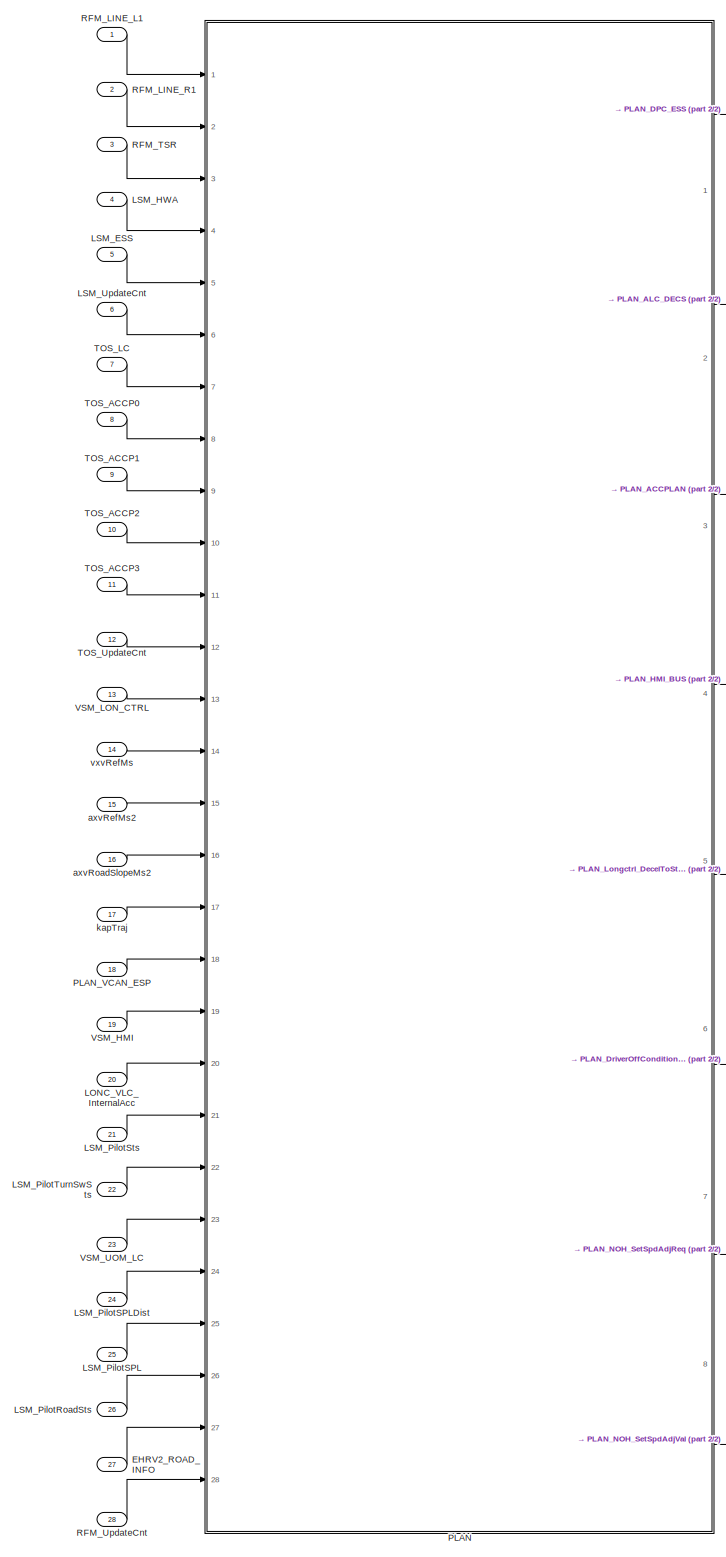
[diagram: root canvas - part 1/2, most of the canvas]
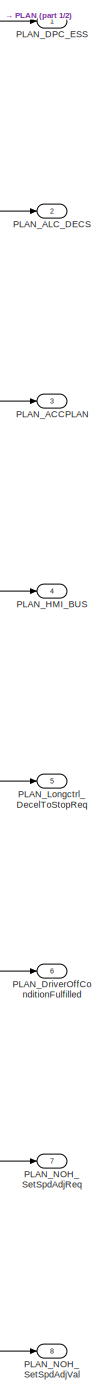
[diagram: root canvas - part 2/2, right side, full height]
MODEL slx_31ac8550f0ec
KIND model
CONFIG AbsTol = auto
CONFIG EnableMultiTasking = off
CONFIG FixedStep = auto
CONFIG InitFcn = , if any(exist('rtifpga_mdlclblib', 'file') ~= 0), rtifpga_mdlclblib('Init', bdroot); end,\n, if any(exist('dsmpb_private', 'file') ~= 0), dsmpb_private('dsmpb_mdlclblib', 'Init', bdroot); end,\n
CONFIG MaxStep = auto
CONFIG MinStep = auto
CONFIG PostLoadFcn = if any(exist('dsrtsu_mdlpostloadfcn', 'file') ~= 0), dsrtsu_mdlpostloadfcn('Execute', bdroot); end
CONFIG RelTol = 1e-3
CONFIG SampleTimeConstraint = Unconstrained
CONFIG SolverName = FixedStepAuto
CONFIG StartTime = 0.0
CONFIG StopTime = Inf
BLOCK [Inport] EHRV2_ROAD_INFO
  OutDataTypeStr = Bus: EHRV2_ROAD_INFO_BUS
  Port = 27
BLOCK [Inport] LONC_VLC_InternalAcc
  BusOutputAsStruct = on
  OutDataTypeStr = single
  Port = 20
  PortDimensions = 1
BLOCK [Inport] LSM_ESS
  BusOutputAsStruct = on
  OutDataTypeStr = Bus: LSM_ESS_BUS
  Port = 5
  PortDimensions = 1
BLOCK [Inport] LSM_HWA
  BusOutputAsStruct = on
  OutDataTypeStr = Bus: LSM_HWA_BUS
  Port = 4
  PortDimensions = 1
BLOCK [Inport] LSM_PilotRoadSts
  OutDataTypeStr = uint8
  Port = 26
BLOCK [Inport] LSM_PilotSPL
  OutDataTypeStr = uint8
  Port = 25
BLOCK [Inport] LSM_PilotSPLDist
  OutDataTypeStr = uint16
  Port = 24
BLOCK [Inport] LSM_PilotSts
  BusOutputAsStruct = on
  OutDataTypeStr = uint8
  Port = 21
  PortDimensions = 1
BLOCK [Inport] LSM_PilotTurnSwSts
  BusOutputAsStruct = on
  OutDataTypeStr = uint8
  Port = 22
  PortDimensions = 1
BLOCK [Inport] LSM_UpdateCnt
  BusOutputAsStruct = on
  OutDataTypeStr = uint32
  Port = 6
  PortDimensions = 1
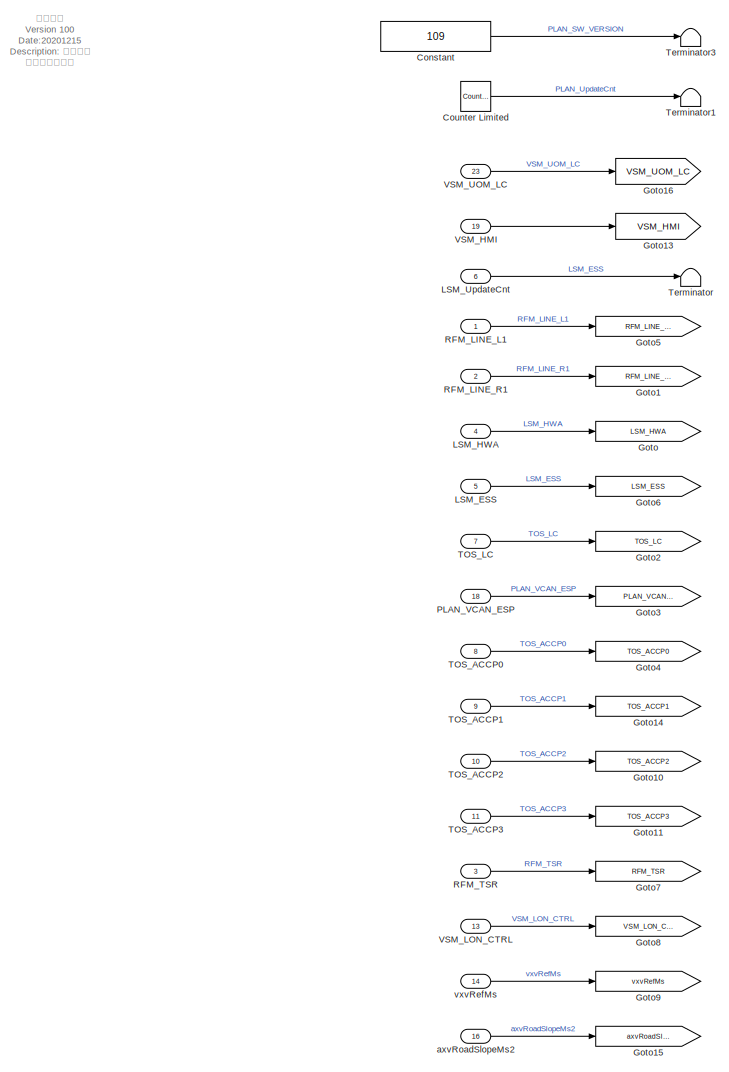
[diagram: PLAN - part 1/3, left side, full height]
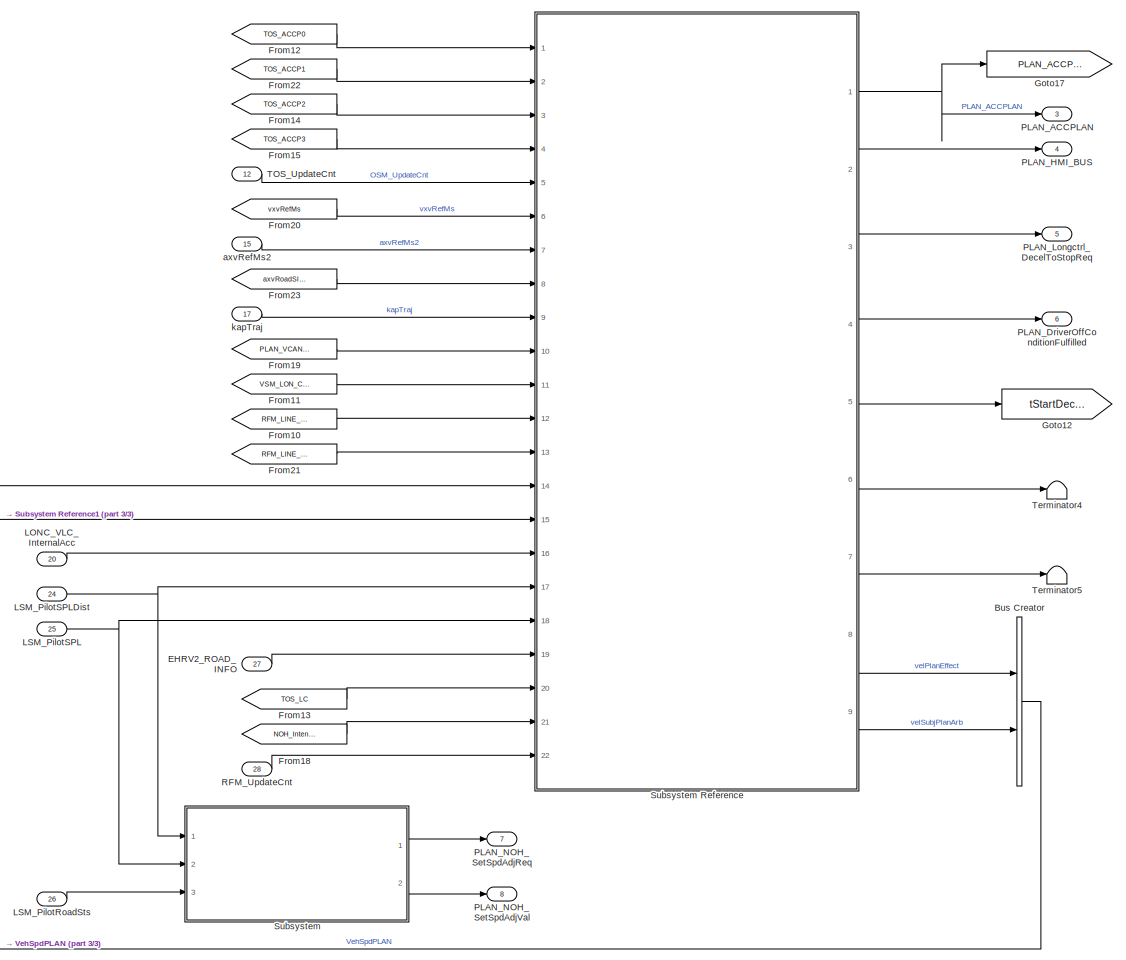
[diagram: PLAN - part 2/3, right side, full height]
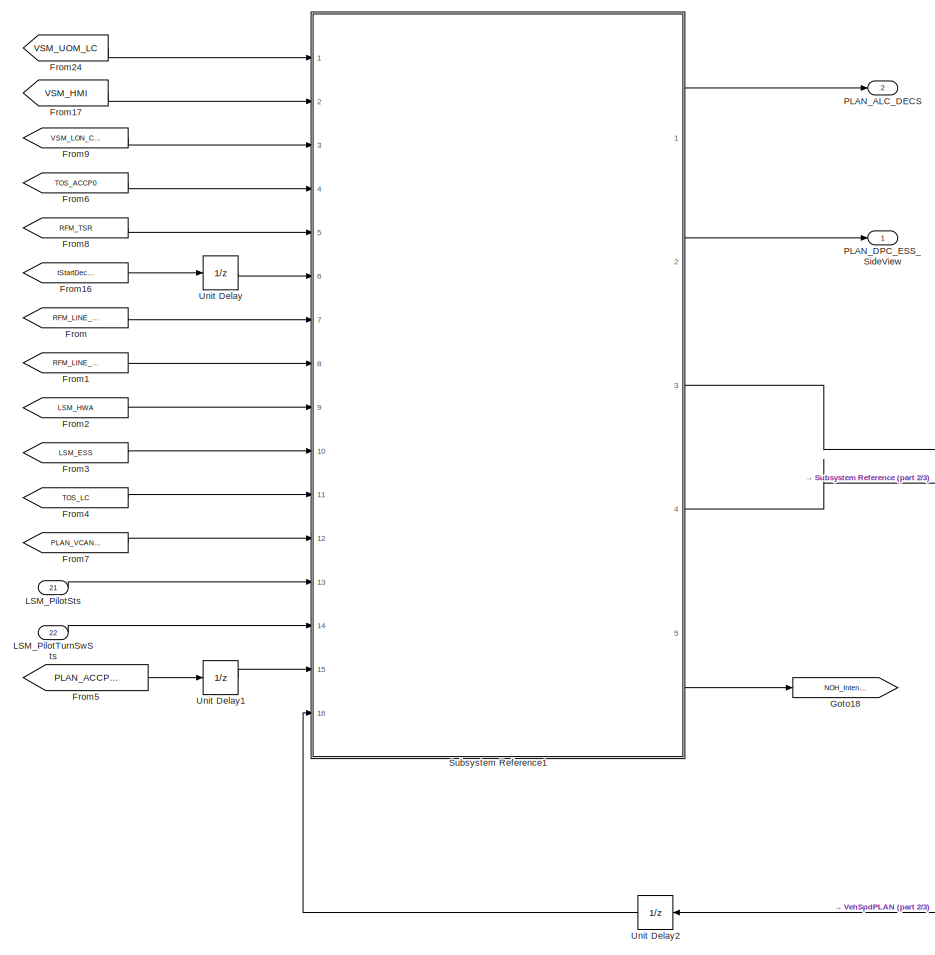
[diagram: PLAN - part 3/3, center side, full height]
BLOCK [SubSystem] PLAN
  Ports = [28, 8]
  RequestExecContextInheritance = off
BLOCK [BusCreator] PLAN/Bus Creator
  DisplayOption = bar
  InheritFromInputs = on
  Inputs = 2
  Ports = [2, 1]
BLOCK [Constant] PLAN/Constant
  OutDataTypeStr = uint8
  Value = 109
BLOCK [Reference] PLAN/Counter Limited  REF=simulink/Sources/Counter
Limited
  Ports = [0, 1]
  SourceBlock = simulink/Sources/Counter\nLimited
  SourceProductBaseCode = SL
  SourceType = Counter Limited
BLOCK [Inport] PLAN/EHRV2_ROAD_INFO
  OutDataTypeStr = Bus: EHRV2_ROAD_INFO_BUS
  Port = 27
BLOCK [From] PLAN/From
  GotoTag = RFM_LINE_L1
BLOCK [From] PLAN/From1
  GotoTag = RFM_LINE_R1
BLOCK [From] PLAN/From10
  GotoTag = RFM_LINE_L1
BLOCK [From] PLAN/From11
  GotoTag = VSM_LON_CTRL
BLOCK [From] PLAN/From12
  GotoTag = TOS_ACCP0
BLOCK [From] PLAN/From13
  GotoTag = TOS_LC
BLOCK [From] PLAN/From14
  GotoTag = TOS_ACCP2
BLOCK [From] PLAN/From15
  GotoTag = TOS_ACCP3
BLOCK [From] PLAN/From16
  GotoTag = tStartDecel
BLOCK [From] PLAN/From17
  GotoTag = VSM_HMI
BLOCK [From] PLAN/From18
  GotoTag = NOH_Intention
BLOCK [From] PLAN/From19
  GotoTag = PLAN_VCAN_ESP
BLOCK [From] PLAN/From2
  GotoTag = LSM_HWA
BLOCK [From] PLAN/From20
  GotoTag = vxvRefMs
BLOCK [From] PLAN/From21
  GotoTag = RFM_LINE_R1
BLOCK [From] PLAN/From22
  GotoTag = TOS_ACCP1
BLOCK [From] PLAN/From23
  GotoTag = axvRoadSlopeMs2
BLOCK [From] PLAN/From24
  GotoTag = VSM_UOM_LC
BLOCK [From] PLAN/From3
  GotoTag = LSM_ESS
BLOCK [From] PLAN/From4
  GotoTag = TOS_LC
BLOCK [From] PLAN/From5
  GotoTag = PLAN_ACCPLAN
BLOCK [From] PLAN/From6
  GotoTag = TOS_ACCP0
BLOCK [From] PLAN/From7
  GotoTag = PLAN_VCAN_ESP
BLOCK [From] PLAN/From8
  GotoTag = RFM_TSR
BLOCK [From] PLAN/From9
  GotoTag = VSM_LON_CTRL
BLOCK [Goto] PLAN/Goto
  GotoTag = LSM_HWA
BLOCK [Goto] PLAN/Goto1
  GotoTag = RFM_LINE_R1
BLOCK [Goto] PLAN/Goto10
  GotoTag = TOS_ACCP2
BLOCK [Goto] PLAN/Goto11
  GotoTag = TOS_ACCP3
BLOCK [Goto] PLAN/Goto12
  GotoTag = tStartDecel
BLOCK [Goto] PLAN/Goto13
  GotoTag = VSM_HMI
BLOCK [Goto] PLAN/Goto14
  GotoTag = TOS_ACCP1
BLOCK [Goto] PLAN/Goto15
  GotoTag = axvRoadSlopeMs2
BLOCK [Goto] PLAN/Goto16
  GotoTag = VSM_UOM_LC
BLOCK [Goto] PLAN/Goto17
  GotoTag = PLAN_ACCPLAN
BLOCK [Goto] PLAN/Goto18
  GotoTag = NOH_Intention
BLOCK [Goto] PLAN/Goto2
  GotoTag = TOS_LC
BLOCK [Goto] PLAN/Goto3
  GotoTag = PLAN_VCAN_ESP
BLOCK [Goto] PLAN/Goto4
  GotoTag = TOS_ACCP0
BLOCK [Goto] PLAN/Goto5
  GotoTag = RFM_LINE_L1
BLOCK [Goto] PLAN/Goto6
  GotoTag = LSM_ESS
BLOCK [Goto] PLAN/Goto7
  GotoTag = RFM_TSR
BLOCK [Goto] PLAN/Goto8
  GotoTag = VSM_LON_CTRL
BLOCK [Goto] PLAN/Goto9
  GotoTag = vxvRefMs
BLOCK [Inport] PLAN/LONC_VLC_InternalAcc
  OutDataTypeStr = single
  Port = 20
BLOCK [Inport] PLAN/LSM_ESS
  BusOutputAsStruct = on
  Interpolate = off
  OutDataTypeStr = Bus: LSM_ESS_BUS
  Port = 5
  PortDimensions = 1
BLOCK [Inport] PLAN/LSM_HWA
  BusOutputAsStruct = on
  Interpolate = off
  OutDataTypeStr = Bus: LSM_HWA_BUS
  Port = 4
  PortDimensions = 1
BLOCK [Inport] PLAN/LSM_PilotRoadSts
  OutDataTypeStr = uint8
  Port = 26
BLOCK [Inport] PLAN/LSM_PilotSPL
  OutDataTypeStr = uint8
  Port = 25
BLOCK [Inport] PLAN/LSM_PilotSPLDist
  OutDataTypeStr = uint16
  Port = 24
BLOCK [Inport] PLAN/LSM_PilotSts
  Port = 21
BLOCK [Inport] PLAN/LSM_PilotTurnSwSts
  Port = 22
BLOCK [Inport] PLAN/LSM_UpdateCnt
  BusOutputAsStruct = on
  Interpolate = off
  OutDataTypeStr = uint32
  Port = 6
  PortDimensions = 1
BLOCK [Outport] PLAN/PLAN_ACCPLAN
  OutDataTypeStr = Bus: PLAN_ACCPLAN_BUS
  Port = 3
BLOCK [Outport] PLAN/PLAN_ALC_DECS
  OutDataTypeStr = Bus: PLAN_ALC_DECS_BUS
  Port = 2
BLOCK [Outport] PLAN/PLAN_DPC_ESS_SideView
  OutDataTypeStr = Bus: PLAN_DPC_ESS_BUS
BLOCK [Outport] PLAN/PLAN_DriverOffConditionFulfilled
  OutDataTypeStr = boolean
  Port = 6
BLOCK [Outport] PLAN/PLAN_HMI_BUS
  OutDataTypeStr = Bus: PLAN_HMI_BUS
  Port = 4
BLOCK [Outport] PLAN/PLAN_Longctrl_DecelToStopReq
  OutDataTypeStr = boolean
  Port = 5
BLOCK [Outport] PLAN/PLAN_NOH_SetSpdAdjReq
  OutDataTypeStr = boolean
  Port = 7
BLOCK [Outport] PLAN/PLAN_NOH_SetSpdAdjVal
  OutDataTypeStr = uint8
  Port = 8
BLOCK [Inport] PLAN/PLAN_VCAN_ESP
  OutDataTypeStr = Bus: VCAN_ESP_MSG_BUS
  Port = 18
BLOCK [Inport] PLAN/RFM_LINE_L1
  BusOutputAsStruct = on
  Interpolate = off
  OutDataTypeStr = Bus: RFM_LINE_BUS
  PortDimensions = 1
BLOCK [Inport] PLAN/RFM_LINE_R1
  BusOutputAsStruct = on
  Interpolate = off
  OutDataTypeStr = Bus: RFM_LINE_BUS
  Port = 2
  PortDimensions = 1
BLOCK [Inport] PLAN/RFM_TSR
  BusOutputAsStruct = on
  Interpolate = off
  OutDataTypeStr = Bus: RFM_TSR_BUS
  Port = 3
  PortDimensions = 1
BLOCK [Inport] PLAN/RFM_UpdateCnt
  Port = 28
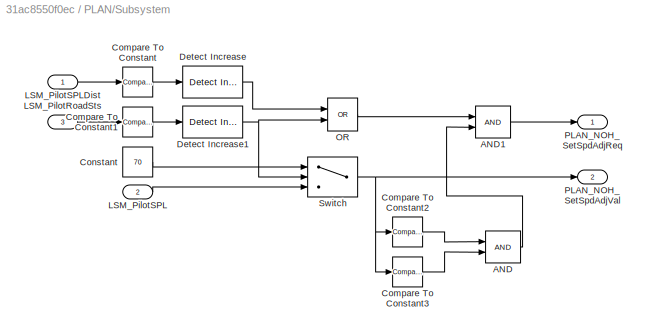
BLOCK [SubSystem] PLAN/Subsystem
  Ports = [3, 2]
  RequestExecContextInheritance = off
BLOCK [SubSystem] PLAN/Subsystem Reference
  Ports = [22, 9]
  ReferencedSubsystem = AP
  RequestExecContextInheritance = off
BLOCK [SubSystem] PLAN/Subsystem Reference1
  Ports = [16, 5]
  ReferencedSubsystem = PLAN_ALC
  RequestExecContextInheritance = off
BLOCK [Logic] PLAN/Subsystem/AND
  AllPortsSameDT = off
  IconShape = distinctive
  OutDataTypeStr = boolean
  Ports = [2, 1]
BLOCK [Logic] PLAN/Subsystem/AND1
  AllPortsSameDT = off
  IconShape = distinctive
  OutDataTypeStr = boolean
  Ports = [2, 1]
BLOCK [Reference] PLAN/Subsystem/Compare To Constant  REF=simulink/Logic and Bit
Operations/Compare
To Constant
  Ports = [1, 1]
  SourceBlock = simulink/Logic and Bit\nOperations/Compare\nTo Constant
  SourceProductBaseCode = SL
  SourceType = Compare To Constant
BLOCK [Reference] PLAN/Subsystem/Compare To Constant1  REF=simulink/Logic and Bit
Operations/Compare
To Constant
  Ports = [1, 1]
  SourceBlock = simulink/Logic and Bit\nOperations/Compare\nTo Constant
  SourceProductBaseCode = SL
  SourceType = Compare To Constant
BLOCK [Reference] PLAN/Subsystem/Compare To Constant2  REF=simulink/Logic and Bit
Operations/Compare
To Constant
  Ports = [1, 1]
  SourceBlock = simulink/Logic and Bit\nOperations/Compare\nTo Constant
  SourceProductBaseCode = SL
  SourceType = Compare To Constant
BLOCK [Reference] PLAN/Subsystem/Compare To Constant3  REF=simulink/Logic and Bit
Operations/Compare
To Constant
  Ports = [1, 1]
  SourceBlock = simulink/Logic and Bit\nOperations/Compare\nTo Constant
  SourceProductBaseCode = SL
  SourceType = Compare To Constant
BLOCK [Constant] PLAN/Subsystem/Constant
  OutDataTypeStr = uint8
  Value = 70
BLOCK [Reference] PLAN/Subsystem/Detect Increase  REF=simulink/Logic and Bit
Operations/Detect
Increase
  Ports = [1, 1]
  SourceBlock = simulink/Logic and Bit\nOperations/Detect\nIncrease
  SourceProductBaseCode = SL
  SourceType = Detect Increase
BLOCK [Reference] PLAN/Subsystem/Detect Increase1  REF=simulink/Logic and Bit
Operations/Detect
Increase
  Ports = [1, 1]
  SourceBlock = simulink/Logic and Bit\nOperations/Detect\nIncrease
  SourceProductBaseCode = SL
  SourceType = Detect Increase
BLOCK [Inport] PLAN/Subsystem/LSM_PilotRoadSts
  Port = 3
BLOCK [Inport] PLAN/Subsystem/LSM_PilotSPL
  Port = 2
BLOCK [Inport] PLAN/Subsystem/LSM_PilotSPLDist
BLOCK [Logic] PLAN/Subsystem/OR
  AllPortsSameDT = off
  Operator = OR
  OutDataTypeStr = boolean
  Ports = [2, 1]
BLOCK [Outport] PLAN/Subsystem/PLAN_NOH_SetSpdAdjReq
BLOCK [Outport] PLAN/Subsystem/PLAN_NOH_SetSpdAdjVal
  Port = 2
BLOCK [Switch] PLAN/Subsystem/Switch
  Criteria = u2 ~= 0
  InputSameDT = off
  SaturateOnIntegerOverflow = off
BLOCK [Inport] PLAN/TOS_ACCP0
  BusOutputAsStruct = on
  OutDataTypeStr = Bus: TOS_ACCP0_BUS
  Port = 8
  PortDimensions = 1
BLOCK [Inport] PLAN/TOS_ACCP1
  LockScale = on
  OutDataTypeStr = Bus: TOS_ACCP1_BUS
  Port = 9
BLOCK [Inport] PLAN/TOS_ACCP2
  OutDataTypeStr = Bus: TOS_ACCP2_BUS
  Port = 10
BLOCK [Inport] PLAN/TOS_ACCP3
  OutDataTypeStr = Bus: TOS_ACCP3_BUS
  Port = 11
BLOCK [Inport] PLAN/TOS_LC
  BusOutputAsStruct = on
  OutDataTypeStr = Bus: TOS_LC_BUS
  Port = 7
  PortDimensions = 1
BLOCK [Inport] PLAN/TOS_UpdateCnt
  Port = 12
BLOCK [Terminator] PLAN/Terminator
BLOCK [Terminator] PLAN/Terminator1
BLOCK [Terminator] PLAN/Terminator3
BLOCK [Terminator] PLAN/Terminator4
BLOCK [Terminator] PLAN/Terminator5
BLOCK [UnitDelay] PLAN/Unit Delay
  HasFrameUpgradeWarning = on
  SampleTime = -1
BLOCK [UnitDelay] PLAN/Unit Delay1
  HasFrameUpgradeWarning = on
  SampleTime = -1
BLOCK [UnitDelay] PLAN/Unit Delay2
  HasFrameUpgradeWarning = on
  SampleTime = -1
BLOCK [Inport] PLAN/VSM_HMI
  OutDataTypeStr = Bus: VSM_HMI_BUS
  Port = 19
BLOCK [Inport] PLAN/VSM_LON_CTRL
  BusOutputAsStruct = on
  Interpolate = off
  OutDataTypeStr = Bus: VSM_LON_CTRL_BUS
  Port = 13
  PortDimensions = 1
BLOCK [Inport] PLAN/VSM_UOM_LC
  OutDataTypeStr = Bus: VSM_UOM_LC_BUS
  Port = 23
BLOCK [Inport] PLAN/axvRefMs2
  Port = 15
BLOCK [Inport] PLAN/axvRoadSlopeMs2
  Port = 16
BLOCK [Inport] PLAN/kapTraj
  Port = 17
BLOCK [Inport] PLAN/vxvRefMs
  BusOutputAsStruct = on
  Interpolate = off
  OutDataTypeStr = single
  Port = 14
  PortDimensions = 1
BLOCK [Outport] PLAN_ACCPLAN
  BusOutputAsStruct = on
  OutDataTypeStr = Bus: PLAN_ACCPLAN_BUS
  Port = 3
  PortDimensions = 1
BLOCK [Outport] PLAN_ALC_DECS
  BusOutputAsStruct = on
  OutDataTypeStr = Bus: PLAN_ALC_DECS_BUS
  Port = 2
  PortDimensions = 1
BLOCK [Outport] PLAN_DPC_ESS
  BusOutputAsStruct = on
  OutDataTypeStr = Bus: PLAN_DPC_ESS_BUS
  PortDimensions = 1
BLOCK [Outport] PLAN_DriverOffConditionFulfilled
  OutDataTypeStr = boolean
  Port = 6
BLOCK [Outport] PLAN_HMI_BUS
  OutDataTypeStr = Bus: PLAN_HMI_BUS
  Port = 4
BLOCK [Outport] PLAN_Longctrl_DecelToStopReq
  OutDataTypeStr = boolean
  Port = 5
BLOCK [Outport] PLAN_NOH_SetSpdAdjReq
  OutDataTypeStr = boolean
  Port = 7
BLOCK [Outport] PLAN_NOH_SetSpdAdjVal
  OutDataTypeStr = uint8
  Port = 8
BLOCK [Inport] PLAN_VCAN_ESP
  BusOutputAsStruct = on
  OutDataTypeStr = Bus: VCAN_ESP_MSG_BUS
  Port = 18
  PortDimensions = 1
BLOCK [Inport] RFM_LINE_L1
  BusOutputAsStruct = on
  OutDataTypeStr = Bus: RFM_LINE_BUS
  PortDimensions = 1
BLOCK [Inport] RFM_LINE_R1
  BusOutputAsStruct = on
  OutDataTypeStr = Bus: RFM_LINE_BUS
  Port = 2
  PortDimensions = 1
BLOCK [Inport] RFM_TSR
  BusOutputAsStruct = on
  OutDataTypeStr = Bus: RFM_TSR_BUS
  Port = 3
  PortDimensions = 1
BLOCK [Inport] RFM_UpdateCnt
  Port = 28
BLOCK [Inport] TOS_ACCP0
  BusOutputAsStruct = on
  OutDataTypeStr = Bus: TOS_ACCP0_BUS
  Port = 8
  PortDimensions = 1
BLOCK [Inport] TOS_ACCP1
  BusOutputAsStruct = on
  OutDataTypeStr = Bus: TOS_ACCP1_BUS
  Port = 9
  PortDimensions = 1
BLOCK [Inport] TOS_ACCP2
  BusOutputAsStruct = on
  OutDataTypeStr = Bus: TOS_ACCP2_BUS
  Port = 10
  PortDimensions = 1
BLOCK [Inport] TOS_ACCP3
  BusOutputAsStruct = on
  OutDataTypeStr = Bus: TOS_ACCP3_BUS
  Port = 11
  PortDimensions = 1
BLOCK [Inport] TOS_LC
  BusOutputAsStruct = on
  OutDataTypeStr = Bus: TOS_LC_BUS
  Port = 7
  PortDimensions = 1
BLOCK [Inport] TOS_UpdateCnt
  BusOutputAsStruct = on
  OutDataTypeStr = uint32
  Port = 12
  PortDimensions = 1
BLOCK [Inport] VSM_HMI
  BusOutputAsStruct = on
  OutDataTypeStr = Bus: VSM_HMI_BUS
  Port = 19
  PortDimensions = 1
BLOCK [Inport] VSM_LON_CTRL
  BusOutputAsStruct = on
  OutDataTypeStr = Bus: VSM_LON_CTRL_BUS
  Port = 13
  PortDimensions = 1
BLOCK [Inport] VSM_UOM_LC
  BusOutputAsStruct = on
  OutDataTypeStr = Bus: VSM_UOM_LC_BUS
  Port = 23
  PortDimensions = 1
BLOCK [Inport] axvRefMs2
  BusOutputAsStruct = on
  OutDataTypeStr = single
  Port = 15
  PortDimensions = 1
BLOCK [Inport] axvRoadSlopeMs2
  BusOutputAsStruct = on
  OutDataTypeStr = single
  Port = 16
  PortDimensions = 1
BLOCK [Inport] kapTraj
  BusOutputAsStruct = on
  OutDataTypeStr = single
  Port = 17
  PortDimensions = 1
BLOCK [Inport] vxvRefMs
  BusOutputAsStruct = on
  OutDataTypeStr = single
  Port = 14
  PortDimensions = 1
ANNOTATION PLAN: 版本管理 Version 100 Date:20201215 Description: 初版释放 修改人：程振宁 Version 101 Date:202012151531 Description: 修改为旧版加速度计算 修改人：赵家旺 Version 102 Date:20201215 Description: 增加转向灯逻辑，删除EHR接口，库更新 修改人：程振宁 Version 103 Date:20201222 Description: 增加标定量 修改人：程振宁 Version 104 Date:20201222 Description: 驾驶员立即响应不延时 修改人：程振宁 Version 105 Date:20201229 Description: 拆分 修改人：程振宁 Version 106 Date:20210106 Description: 接口修改 修改人：程振宁 V...<+188ch>
LINE EHRV2_ROAD_INFO:1 -> PLAN:27
LINE LONC_VLC_InternalAcc:1 -> PLAN:20
LINE LSM_ESS:1 -> PLAN:5
LINE LSM_HWA:1 -> PLAN:4
LINE LSM_PilotRoadSts:1 -> PLAN:26
LINE LSM_PilotSPL:1 -> PLAN:25
LINE LSM_PilotSPLDist:1 -> PLAN:24
LINE LSM_PilotSts:1 -> PLAN:21
LINE LSM_PilotTurnSwSts:1 -> PLAN:22
LINE LSM_UpdateCnt:1 -> PLAN:6
LINE PLAN/Bus Creator:1 -> PLAN/Unit Delay2:1
LINE PLAN/Constant:1 -> PLAN/Terminator3:1
LINE PLAN/Counter Limited:1 -> PLAN/Terminator1:1
LINE PLAN/EHRV2_ROAD_INFO:1 -> PLAN/Subsystem Reference:19
LINE PLAN/From10:1 -> PLAN/Subsystem Reference:12
LINE PLAN/From11:1 -> PLAN/Subsystem Reference:11
LINE PLAN/From12:1 -> PLAN/Subsystem Reference:1
LINE PLAN/From13:1 -> PLAN/Subsystem Reference:20
LINE PLAN/From14:1 -> PLAN/Subsystem Reference:3
LINE PLAN/From15:1 -> PLAN/Subsystem Reference:4
LINE PLAN/From16:1 -> PLAN/Unit Delay:1
LINE PLAN/From17:1 -> PLAN/Subsystem Reference1:2
LINE PLAN/From18:1 -> PLAN/Subsystem Reference:21
LINE PLAN/From19:1 -> PLAN/Subsystem Reference:10
LINE PLAN/From1:1 -> PLAN/Subsystem Reference1:8
LINE PLAN/From20:1 -> PLAN/Subsystem Reference:6
LINE PLAN/From21:1 -> PLAN/Subsystem Reference:13
LINE PLAN/From22:1 -> PLAN/Subsystem Reference:2
LINE PLAN/From23:1 -> PLAN/Subsystem Reference:8
LINE PLAN/From24:1 -> PLAN/Subsystem Reference1:1
LINE PLAN/From2:1 -> PLAN/Subsystem Reference1:9
LINE PLAN/From3:1 -> PLAN/Subsystem Reference1:10
LINE PLAN/From4:1 -> PLAN/Subsystem Reference1:11
LINE PLAN/From5:1 -> PLAN/Unit Delay1:1
LINE PLAN/From6:1 -> PLAN/Subsystem Reference1:4
LINE PLAN/From7:1 -> PLAN/Subsystem Reference1:12
LINE PLAN/From8:1 -> PLAN/Subsystem Reference1:5
LINE PLAN/From9:1 -> PLAN/Subsystem Reference1:3
LINE PLAN/From:1 -> PLAN/Subsystem Reference1:7
LINE PLAN/LONC_VLC_InternalAcc:1 -> PLAN/Subsystem Reference:16
LINE PLAN/LSM_ESS:1 -> PLAN/Goto6:1
LINE PLAN/LSM_HWA:1 -> PLAN/Goto:1
LINE PLAN/LSM_PilotRoadSts:1 -> PLAN/Subsystem:3
NET PLAN/LSM_PilotSPL:1 -> PLAN/Subsystem Reference:18, PLAN/Subsystem:2
NET PLAN/LSM_PilotSPLDist:1 -> PLAN/Subsystem Reference:17, PLAN/Subsystem:1
LINE PLAN/LSM_PilotSts:1 -> PLAN/Subsystem Reference1:13
LINE PLAN/LSM_PilotTurnSwSts:1 -> PLAN/Subsystem Reference1:14
LINE PLAN/LSM_UpdateCnt:1 -> PLAN/Terminator:1
LINE PLAN/PLAN_VCAN_ESP:1 -> PLAN/Goto3:1
LINE PLAN/RFM_LINE_L1:1 -> PLAN/Goto5:1
LINE PLAN/RFM_LINE_R1:1 -> PLAN/Goto1:1
LINE PLAN/RFM_TSR:1 -> PLAN/Goto7:1
LINE PLAN/RFM_UpdateCnt:1 -> PLAN/Subsystem Reference:22
LINE PLAN/Subsystem Reference1:1 -> PLAN/PLAN_ALC_DECS:1
LINE PLAN/Subsystem Reference1:2 -> PLAN/PLAN_DPC_ESS_SideView:1
LINE PLAN/Subsystem Reference1:3 -> PLAN/Subsystem Reference:14
LINE PLAN/Subsystem Reference1:4 -> PLAN/Subsystem Reference:15
LINE PLAN/Subsystem Reference1:5 -> PLAN/Goto18:1
NET PLAN/Subsystem Reference:1 -> PLAN/Goto17:1, PLAN/PLAN_ACCPLAN:1
LINE PLAN/Subsystem Reference:2 -> PLAN/PLAN_HMI_BUS:1
LINE PLAN/Subsystem Reference:3 -> PLAN/PLAN_Longctrl_DecelToStopReq:1
LINE PLAN/Subsystem Reference:4 -> PLAN/PLAN_DriverOffConditionFulfilled:1
LINE PLAN/Subsystem Reference:5 -> PLAN/Goto12:1
LINE PLAN/Subsystem Reference:6 -> PLAN/Terminator4:1
LINE PLAN/Subsystem Reference:7 -> PLAN/Terminator5:1
LINE PLAN/Subsystem Reference:8 -> PLAN/Bus Creator:1
LINE PLAN/Subsystem Reference:9 -> PLAN/Bus Creator:2
LINE PLAN/Subsystem/AND1:1 -> PLAN/Subsystem/PLAN_NOH_SetSpdAdjReq:1
LINE PLAN/Subsystem/AND:1 -> PLAN/Subsystem/AND1:2
LINE PLAN/Subsystem/Compare To Constant1:1 -> PLAN/Subsystem/Detect Increase1:1
LINE PLAN/Subsystem/Compare To Constant2:1 -> PLAN/Subsystem/AND:1
LINE PLAN/Subsystem/Compare To Constant3:1 -> PLAN/Subsystem/AND:2
LINE PLAN/Subsystem/Compare To Constant:1 -> PLAN/Subsystem/Detect Increase:1
LINE PLAN/Subsystem/Constant:1 -> PLAN/Subsystem/Switch:1
NET PLAN/Subsystem/Detect Increase1:1 -> PLAN/Subsystem/OR:2, PLAN/Subsystem/Switch:2
LINE PLAN/Subsystem/Detect Increase:1 -> PLAN/Subsystem/OR:1
LINE PLAN/Subsystem/LSM_PilotRoadSts:1 -> PLAN/Subsystem/Compare To Constant1:1
LINE PLAN/Subsystem/LSM_PilotSPL:1 -> PLAN/Subsystem/Switch:3
LINE PLAN/Subsystem/LSM_PilotSPLDist:1 -> PLAN/Subsystem/Compare To Constant:1
LINE PLAN/Subsystem/OR:1 -> PLAN/Subsystem/AND1:1
NET PLAN/Subsystem/Switch:1 -> PLAN/Subsystem/Compare To Constant2:1, PLAN/Subsystem/Compare To Constant3:1, PLAN/Subsystem/PLAN_NOH_SetSpdAdjVal:1
LINE PLAN/Subsystem:1 -> PLAN/PLAN_NOH_SetSpdAdjReq:1
LINE PLAN/Subsystem:2 -> PLAN/PLAN_NOH_SetSpdAdjVal:1
LINE PLAN/TOS_ACCP0:1 -> PLAN/Goto4:1
LINE PLAN/TOS_ACCP1:1 -> PLAN/Goto14:1
LINE PLAN/TOS_ACCP2:1 -> PLAN/Goto10:1
LINE PLAN/TOS_ACCP3:1 -> PLAN/Goto11:1
LINE PLAN/TOS_LC:1 -> PLAN/Goto2:1
LINE PLAN/TOS_UpdateCnt:1 -> PLAN/Subsystem Reference:5
LINE PLAN/Unit Delay1:1 -> PLAN/Subsystem Reference1:15
LINE PLAN/Unit Delay2:1 -> PLAN/Subsystem Reference1:16
LINE PLAN/Unit Delay:1 -> PLAN/Subsystem Reference1:6
LINE PLAN/VSM_HMI:1 -> PLAN/Goto13:1
LINE PLAN/VSM_LON_CTRL:1 -> PLAN/Goto8:1
LINE PLAN/VSM_UOM_LC:1 -> PLAN/Goto16:1
LINE PLAN/axvRefMs2:1 -> PLAN/Subsystem Reference:7
LINE PLAN/axvRoadSlopeMs2:1 -> PLAN/Goto15:1
LINE PLAN/kapTraj:1 -> PLAN/Subsystem Reference:9
LINE PLAN/vxvRefMs:1 -> PLAN/Goto9:1
LINE PLAN:1 -> PLAN_DPC_ESS:1
LINE PLAN:2 -> PLAN_ALC_DECS:1
LINE PLAN:3 -> PLAN_ACCPLAN:1
LINE PLAN:4 -> PLAN_HMI_BUS:1
LINE PLAN:5 -> PLAN_Longctrl_DecelToStopReq:1
LINE PLAN:6 -> PLAN_DriverOffConditionFulfilled:1
LINE PLAN:7 -> PLAN_NOH_SetSpdAdjReq:1
LINE PLAN:8 -> PLAN_NOH_SetSpdAdjVal:1
LINE PLAN_VCAN_ESP:1 -> PLAN:18
LINE RFM_LINE_L1:1 -> PLAN:1
LINE RFM_LINE_R1:1 -> PLAN:2
LINE RFM_TSR:1 -> PLAN:3
LINE RFM_UpdateCnt:1 -> PLAN:28
LINE TOS_ACCP0:1 -> PLAN:8
LINE TOS_ACCP1:1 -> PLAN:9
LINE TOS_ACCP2:1 -> PLAN:10
LINE TOS_ACCP3:1 -> PLAN:11
LINE TOS_LC:1 -> PLAN:7
LINE TOS_UpdateCnt:1 -> PLAN:12
LINE VSM_HMI:1 -> PLAN:19
LINE VSM_LON_CTRL:1 -> PLAN:13
LINE VSM_UOM_LC:1 -> PLAN:23
LINE axvRefMs2:1 -> PLAN:15
LINE axvRoadSlopeMs2:1 -> PLAN:16
LINE kapTraj:1 -> PLAN:17
LINE vxvRefMs:1 -> PLAN:14
note: NET lines group one-source signal fan-out (src -> all destinations, sorted); 1:1 wires keep LINE
